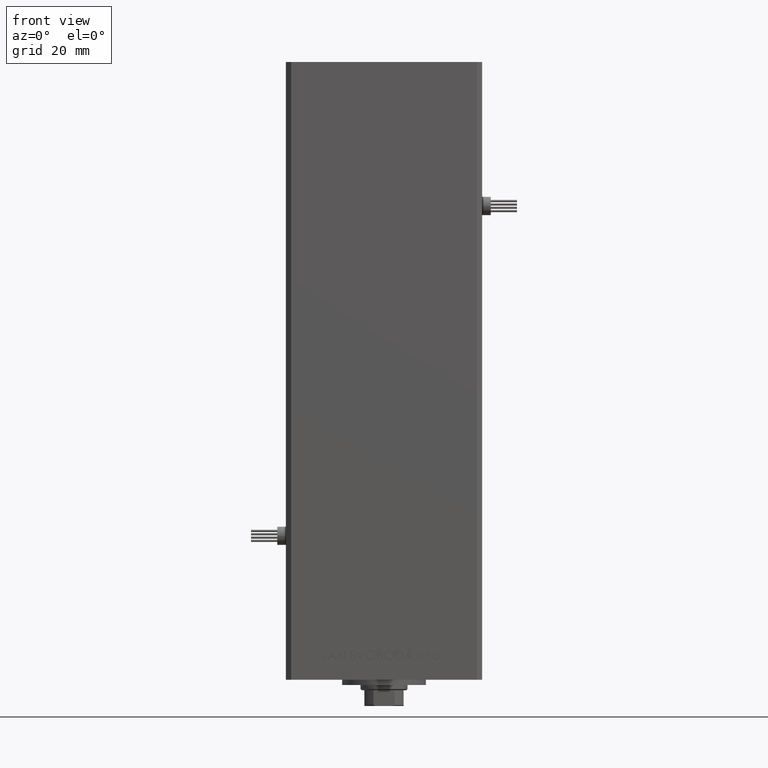
[diagram: clean part render]
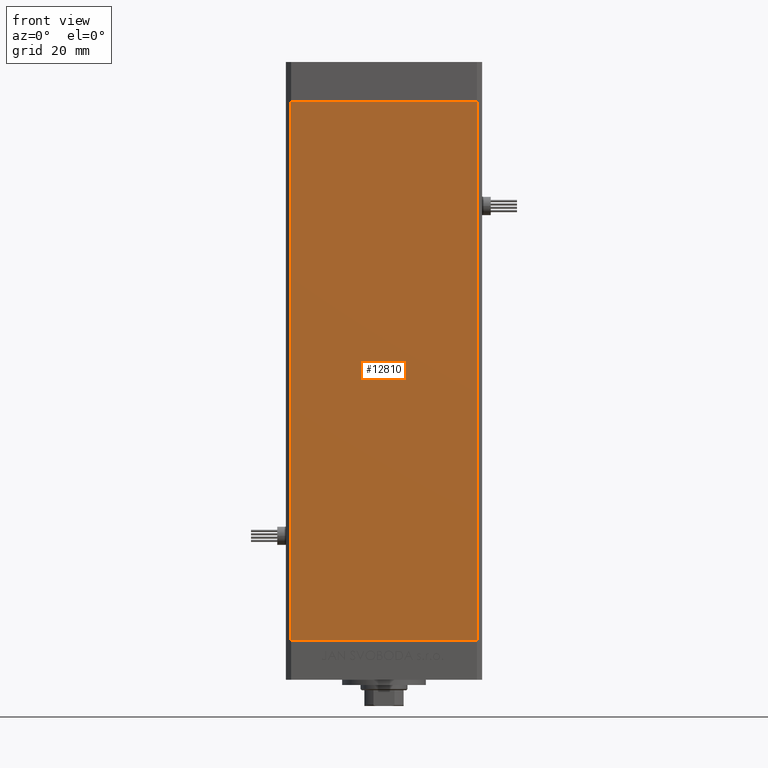
[diagram: same view with one face highlighted and labeled with its STEP entity id]
A machine part, front view. The second image highlights one B-rep face of the part: STEP entity #12810.
In plain terms, the highlighted planar face has unit normal (0, 1, 0).
Its self-contained STEP definition (entity closure, byte-faithful):
#2987 = CARTESIAN_POINT ( 'NONE',  ( -35.49999999999999289, -32.50000000000000000, 206.0000000000000000 ) ) ;
#3101 = VECTOR ( 'NONE', #40016, 1000.000000000000000 ) ;
#3886 = VERTEX_POINT ( 'NONE', #41239 ) ;
#4602 = AXIS2_PLACEMENT_3D ( 'NONE', #34311, #50443, #22403 ) ;
#9058 = VECTOR ( 'NONE', #9901, 1000.000000000000000 ) ;
#9266 = EDGE_CURVE ( 'NONE', #40977, #18355, #51733, .T. ) ;
#9901 = DIRECTION ( 'NONE',  ( -0.000000000000000000, -0.000000000000000000, -1.000000000000000000 ) ) ;
#11616 = ORIENTED_EDGE ( 'NONE', *, *, #35010, .F. ) ;
#12000 = LINE ( 'NONE', #2987, #3101 ) ;
#12810 = ADVANCED_FACE ( 'NONE', ( #30093 ), #26121, .F. ) ;
#15775 = CARTESIAN_POINT ( 'NONE',  ( -35.49999999999999289, -32.50000000000000000, 0.000000000000000000 ) ) ;
#15787 = CARTESIAN_POINT ( 'NONE',  ( -35.49999999999999289, -32.50000000000000000, 0.000000000000000000 ) ) ;
#18355 = VERTEX_POINT ( 'NONE', #40666 ) ;
#18819 = EDGE_CURVE ( 'NONE', #36035, #40977, #12000, .T. ) ;
#19559 = EDGE_CURVE ( 'NONE', #3886, #18355, #49573, .T. ) ;
#20493 = EDGE_LOOP ( 'NONE', ( #37284, #35077, #11616, #40594 ) ) ;
#22403 = DIRECTION ( 'NONE',  ( 0.000000000000000000, -0.000000000000000000, 1.000000000000000000 ) ) ;
#23085 = CARTESIAN_POINT ( 'NONE',  ( -35.49999999999999289, -32.50000000000000000, 206.0000000000000000 ) ) ;
#25504 = CARTESIAN_POINT ( 'NONE',  ( 35.49999999999999289, -32.50000000000000000, 206.0000000000000000 ) ) ;
#26121 = PLANE ( 'NONE',  #4602 ) ;
#30093 = FACE_OUTER_BOUND ( 'NONE', #20493, .T. ) ;
#31908 = DIRECTION ( 'NONE',  ( 1.000000000000000000, 0.000000000000000000, 0.000000000000000000 ) ) ;
#33172 = CARTESIAN_POINT ( 'NONE',  ( -35.49999999999999289, -32.50000000000000000, 206.0000000000000000 ) ) ;
#34311 = CARTESIAN_POINT ( 'NONE',  ( -35.49999999999999289, -32.50000000000000000, 206.0000000000000000 ) ) ;
#35010 = EDGE_CURVE ( 'NONE', #36035, #3886, #48541, .T. ) ;
#35077 = ORIENTED_EDGE ( 'NONE', *, *, #19559, .F. ) ;
#36035 = VERTEX_POINT ( 'NONE', #23085 ) ;
#37284 = ORIENTED_EDGE ( 'NONE', *, *, #9266, .T. ) ;
#40016 = DIRECTION ( 'NONE',  ( -0.000000000000000000, -0.000000000000000000, -1.000000000000000000 ) ) ;
#40594 = ORIENTED_EDGE ( 'NONE', *, *, #18819, .T. ) ;
#40666 = CARTESIAN_POINT ( 'NONE',  ( 35.49999999999999289, -32.50000000000000000, 0.000000000000000000 ) ) ;
#40977 = VERTEX_POINT ( 'NONE', #15787 ) ;
#41239 = CARTESIAN_POINT ( 'NONE',  ( 35.49999999999999289, -32.50000000000000000, 206.0000000000000000 ) ) ;
#41946 = VECTOR ( 'NONE', #49312, 1000.000000000000000 ) ;
#44113 = VECTOR ( 'NONE', #31908, 1000.000000000000000 ) ;
#48541 = LINE ( 'NONE', #33172, #41946 ) ;
#49312 = DIRECTION ( 'NONE',  ( 1.000000000000000000, 0.000000000000000000, 0.000000000000000000 ) ) ;
#49573 = LINE ( 'NONE', #25504, #9058 ) ;
#50443 = DIRECTION ( 'NONE',  ( 0.000000000000000000, 1.000000000000000000, 0.000000000000000000 ) ) ;
#51733 = LINE ( 'NONE', #15775, #44113 ) ;